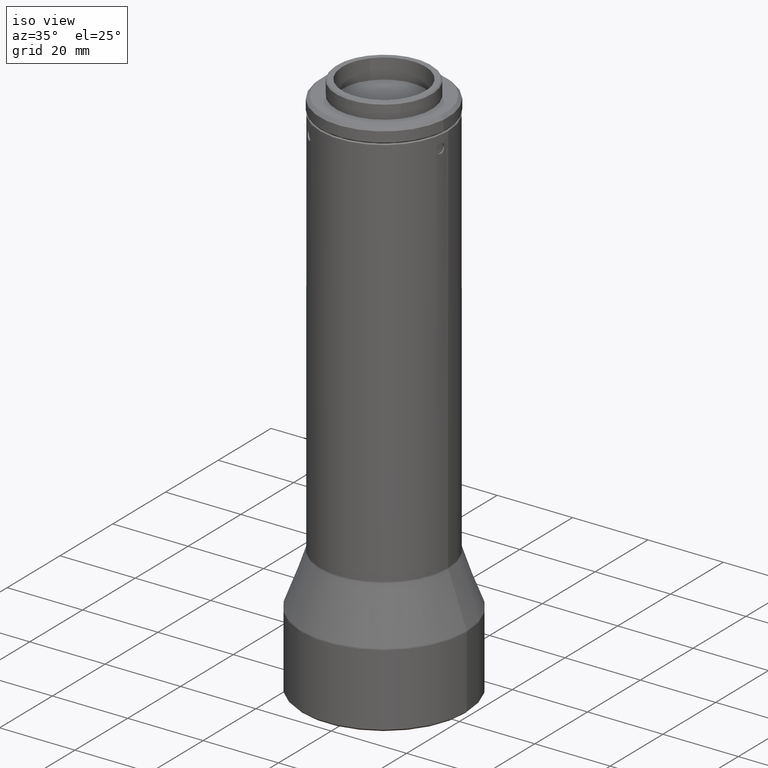
[diagram: clean part render]
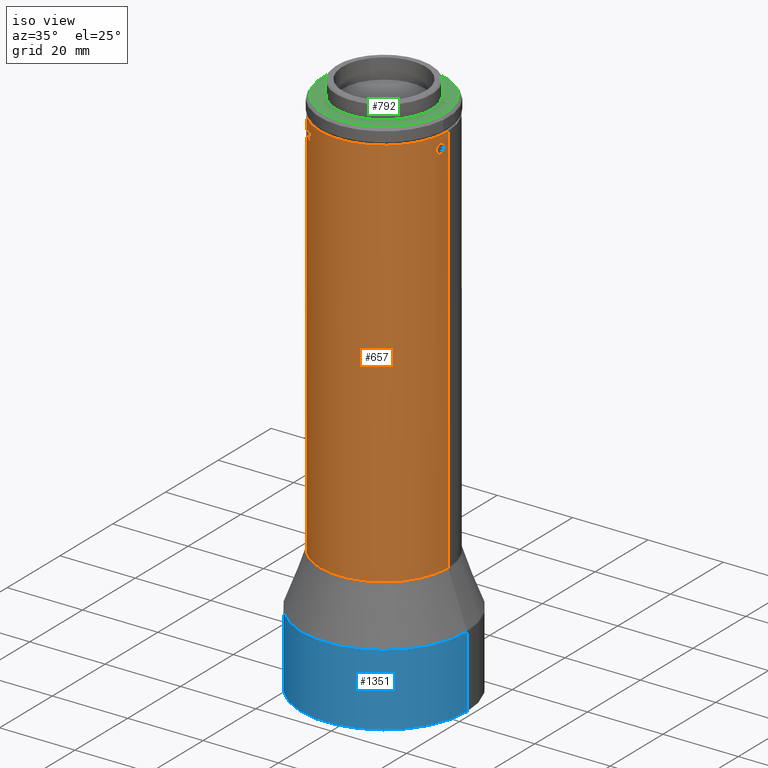
[diagram: same view with three faces highlighted in distinct colors, each labeled with its STEP entity id]
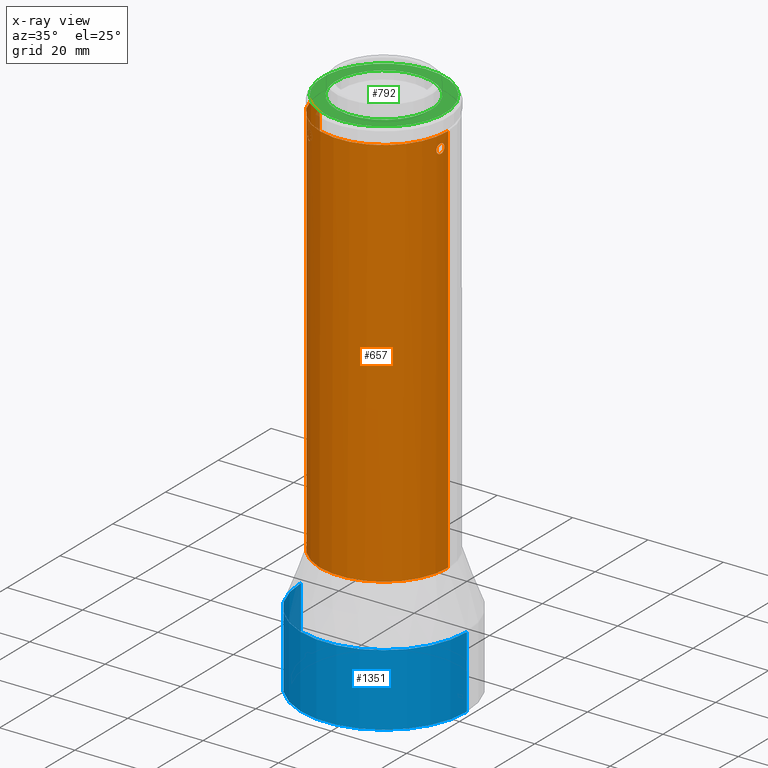
[diagram: x-ray of the same camera — body ghosted, the three highlighted faces saturated]
A machine part, iso view with three faces highlighted in distinct colors.
The next image is the same camera in x-ray (body ghosted, the three faces saturated) — at least one of them is partly hidden behind the body in this view.
Their STEP definitions:

[orange] entity #657 — the highlighted cylindrical surface (partial cylindrical patch) has radius 17 mm, axis along (-0, -0, 1).
#5 = CARTESIAN_POINT ( 'NONE',  ( 16.94905413051333200, -1.315128921790565300, 101.9213085027108700 ) ) ;
#14 = CARTESIAN_POINT ( 'NONE',  ( 16.89025995796418300, -1.934363905099334400, 100.8288744721812000 ) ) ;
#25 = EDGE_CURVE ( 'NONE', #645, #285, #1396, .T. ) ;
#31 = CARTESIAN_POINT ( 'NONE',  ( -11.38047858313887200, -12.62925301557978100, 101.1525873956887000 ) ) ;
#36 = CARTESIAN_POINT ( 'NONE',  ( -10.36336026785664200, -13.47617101914538800, 100.7113291923188600 ) ) ;
#64 = EDGE_CURVE ( 'NONE', #1439, #1475, #1095, .T. ) ;
#65 = ORIENTED_EDGE ( 'NONE', *, *, #289, .T. ) ;
#75 = B_SPLINE_CURVE_WITH_KNOTS ( 'NONE', 3,
 ( #279, #980, #568, #1282, #1039, #874, #14, #1701, #1444, #1683, #1431, #1424, #1168, #1308, #457, #1690, #1565, #325, #609, #884 ),
 .UNSPECIFIED., .F., .F.,
 ( 4, 2, 2, 2, 2, 2, 2, 2, 2, 4 ),
 ( 0.0000000000000000000, 0.0004886735322580783400, 0.0009773470645161566800, 0.001466020596774235000, 0.001954694129032313800, 0.002443367661290392300, 0.002932041193548470900, 0.003420714725806550300, 0.003665051491935589400, 0.003909388258064629300 ),
 .UNSPECIFIED. ) ;
#77 = FACE_BOUND ( 'NONE', #565, .T. ) ;
#80 = VECTOR ( 'NONE', #1202, 1000.000000000000000 ) ;
#105 = VERTEX_POINT ( 'NONE', #1515 ) ;
#107 = VERTEX_POINT ( 'NONE', #1807 ) ;
#110 = EDGE_CURVE ( 'NONE', #107, #1077, #75, .T. ) ;
#119 = CARTESIAN_POINT ( 'NONE',  ( 16.78148654663573000, -2.721935796130891200, 103.1711756310488300 ) ) ;
#135 = CARTESIAN_POINT ( 'NONE',  ( -17.00000000000000400, -3.515294156905914800E-015, 21.83130850271087900 ) ) ;
#136 = CARTESIAN_POINT ( 'NONE',  ( 16.88932506598335000, -1.937864698210162200, 103.0067020985440400 ) ) ;
#155 = CARTESIAN_POINT ( 'NONE',  ( -11.56580348792036800, -12.45922107030812300, 102.0863269330251100 ) ) ;
#162 = CARTESIAN_POINT ( 'NONE',  ( -11.37668829836310100, -12.63222171743451700, 102.6832927383247200 ) ) ;
#174 = CARTESIAN_POINT ( 'NONE',  ( -10.55504366525565600, -13.32657911771386200, 100.6712762916108900 ) ) ;
#187 = CARTESIAN_POINT ( 'NONE',  ( -9.613462120778924800, -14.02074698624684900, 102.0843903150159800 ) ) ;
#215 = CARTESIAN_POINT ( 'NONE',  ( -7.330792791710123900E-015, 1.489166409255931800E-015, 0.5076354834193160800 ) ) ;
#245 = EDGE_CURVE ( 'NONE', #105, #285, #1621, .T. ) ;
#272 = CARTESIAN_POINT ( 'NONE',  ( 16.93616685933046300, -1.473150578222909500, 102.5513020872525200 ) ) ;
#276 = AXIS2_PLACEMENT_3D ( 'NONE', #215, #355, #935 ) ;
#279 = CARTESIAN_POINT ( 'NONE',  ( 16.94905413051333200, -1.315128921790565300, 101.9213085027108700 ) ) ;
#285 = VERTEX_POINT ( 'NONE', #835 ) ;
#289 = EDGE_CURVE ( 'NONE', #1077, #107, #1600, .T. ) ;
#306 = CARTESIAN_POINT ( 'NONE',  ( -11.54196786360067900, -12.48146379484171600, 102.2485575802516300 ) ) ;
#310 = CARTESIAN_POINT ( 'NONE',  ( -11.56580348792036800, -12.45922107030812100, 101.9213085027108600 ) ) ;
#312 = ORIENTED_EDGE ( 'NONE', *, *, #419, .T. ) ;
#314 = CARTESIAN_POINT ( 'NONE',  ( -11.33737396534573200, -12.66756822603368200, 102.7476085491923800 ) ) ;
#322 = CARTESIAN_POINT ( 'NONE',  ( 17.00000000000002100, -5.597193715456385900E-015, 105.2213085027108500 ) ) ;
#325 = CARTESIAN_POINT ( 'NONE',  ( 16.57473564104622500, -3.778676392364550600, 101.7568385735546200 ) ) ;
#332 = CARTESIAN_POINT ( 'NONE',  ( -9.818928867224775200, -13.87812310333215600, 101.1539575460427900 ) ) ;
#339 = CARTESIAN_POINT ( 'NONE',  ( -10.48862926019264400, -13.37968384325892400, 103.1711815272660400 ) ) ;
#355 = DIRECTION ( 'NONE',  ( 7.861355739480307100E-016, -5.318304654131179000E-016, 1.000000000000000000 ) ) ;
#382 = ORIENTED_EDGE ( 'NONE', *, *, #245, .T. ) ;
#419 = EDGE_CURVE ( 'NONE', #1475, #1439, #1372, .T. ) ;
#425 = CARTESIAN_POINT ( 'NONE',  ( 16.94655896077884400, -1.348354516456431500, 102.2506348374589900 ) ) ;
#456 = CARTESIAN_POINT ( 'NONE',  ( -9.613462120778921300, -14.02074698624684100, 101.9213085027108600 ) ) ;
#457 = CARTESIAN_POINT ( 'NONE',  ( 16.60755234644779000, -3.632238825455038200, 101.2914993854814300 ) ) ;
#461 = CARTESIAN_POINT ( 'NONE',  ( -11.20792197621900500, -12.78263735464061100, 102.9205506822081200 ) ) ;
#477 = CARTESIAN_POINT ( 'NONE',  ( -10.11886271781574100, -13.66131483895976100, 103.0128289217879900 ) ) ;
#490 = EDGE_CURVE ( 'NONE', #1089, #1687, #1334, .T. ) ;
#492 = ORIENTED_EDGE ( 'NONE', *, *, #1476, .T. ) ;
#499 = DIRECTION ( 'NONE',  ( 3.330669073875489300E-016, 4.163336342344364100E-017, -1.000000000000000000 ) ) ;
#558 = CARTESIAN_POINT ( 'NONE',  ( 16.62737123516994900, -3.541725786202562600, 102.6892645862191700 ) ) ;
#565 = EDGE_LOOP ( 'NONE', ( #312, #992 ) ) ;
#568 = CARTESIAN_POINT ( 'NONE',  ( 16.94661323031724400, -1.347686062889913200, 101.5939260053131900 ) ) ;
#579 = ORIENTED_EDGE ( 'NONE', *, *, #110, .T. ) ;
#593 = CARTESIAN_POINT ( 'NONE',  ( 1.932830351480316200E-014, -5.089735884583224300E-014, 105.2213085027108500 ) ) ;
#609 = CARTESIAN_POINT ( 'NONE',  ( 16.57290370221338800, -3.786669100563599100, 101.8397133775706600 ) ) ;
#612 = CARTESIAN_POINT ( 'NONE',  ( -11.10284782064750100, -12.87436994652603900, 103.0136296684156900 ) ) ;
#619 = CARTESIAN_POINT ( 'NONE',  ( -10.74662669445600800, -13.17335561629377900, 103.1714347437540300 ) ) ;
#622 = CARTESIAN_POINT ( 'NONE',  ( -11.54191626976678400, -12.48151114044446600, 101.5938929586061200 ) ) ;
#634 = ORIENTED_EDGE ( 'NONE', *, *, #1239, .T. ) ;
#645 = VERTEX_POINT ( 'NONE', #1112 ) ;
#657 = ADVANCED_FACE ( 'NONE', ( #1131, #1458, #77 ), #1550, .T. ) ;
#669 = ORIENTED_EDGE ( 'NONE', *, *, #25, .F. ) ;
#691 = CARTESIAN_POINT ( 'NONE',  ( 16.70067485627505400, -3.179675404758538700, 103.0128807274217300 ) ) ;
#698 = CARTESIAN_POINT ( 'NONE',  ( 16.88101599737466100, -2.009239450649241000, 103.0450520773665900 ) ) ;
#724 = CARTESIAN_POINT ( 'NONE',  ( -10.12001132981679200, -13.66046607295546300, 100.8289482953363900 ) ) ;
#734 = CARTESIAN_POINT ( 'NONE',  ( -10.00885188491131000, -13.74178114062253000, 100.9205654906212900 ) ) ;
#750 = CARTESIAN_POINT ( 'NONE',  ( -9.743130115621673000, -13.93109144322356100, 102.5497380924409200 ) ) ;
#765 = CARTESIAN_POINT ( 'NONE',  ( -9.640605093743696200, -14.00223648835691700, 102.2489109379591700 ) ) ;
#798 = AXIS2_PLACEMENT_3D ( 'NONE', #968, #1377, #1100 ) ;
#835 = CARTESIAN_POINT ( 'NONE',  ( -16.99999999999997900, -3.515294156905951500E-015, 105.2213085027108500 ) ) ;
#843 = CARTESIAN_POINT ( 'NONE',  ( 16.83115783817080300, -2.395694266753605200, 103.1714405686863400 ) ) ;
#854 = CARTESIAN_POINT ( 'NONE',  ( 16.92809607152892300, -1.566178421309452100, 102.6905818722793400 ) ) ;
#857 = DIRECTION ( 'NONE',  ( -9.314793397420502900E-020, -0.0000000000000000000, 1.000000000000000000 ) ) ;
#872 = CARTESIAN_POINT ( 'NONE',  ( -11.56580348792036800, -12.45922107030812100, 101.9213085027108600 ) ) ;
#874 = CARTESIAN_POINT ( 'NONE',  ( 16.90529876697739900, -1.795607507566172400, 100.9219921928989300 ) ) ;
#884 = CARTESIAN_POINT ( 'NONE',  ( 16.57290370221149800, -3.786669100571844900, 101.9213085027103600 ) ) ;
#895 = CARTESIAN_POINT ( 'NONE',  ( -9.613462120778923000, -14.02074698624684100, 101.7581814181764500 ) ) ;
#935 = DIRECTION ( 'NONE',  ( 1.000000000000000000, 1.665334536937734800E-016, -7.844521600924530800E-016 ) ) ;
#936 = ORIENTED_EDGE ( 'NONE', *, *, #490, .T. ) ;
#968 = CARTESIAN_POINT ( 'NONE',  ( 3.033153964630221900E-015, -5.597193715456416600E-015, 21.83130850271087900 ) ) ;
#975 = CARTESIAN_POINT ( 'NONE',  ( 16.75460587751560800, -2.882023286471464100, 103.1384823655853000 ) ) ;
#980 = CARTESIAN_POINT ( 'NONE',  ( 16.94905413051333900, -1.315128921790566000, 101.7560676773484100 ) ) ;
#992 = ORIENTED_EDGE ( 'NONE', *, *, #64, .T. ) ;
#1017 = CARTESIAN_POINT ( 'NONE',  ( -10.87310501901400000, -13.06897997279104500, 100.7042155034463500 ) ) ;
#1023 = CARTESIAN_POINT ( 'NONE',  ( -11.44401269543521600, -12.57126229076673400, 102.5475191983547800 ) ) ;
#1029 = CARTESIAN_POINT ( 'NONE',  ( -11.44929573693867700, -12.56652611724754100, 101.2913280732117600 ) ) ;
#1037 = CARTESIAN_POINT ( 'NONE',  ( -11.10278066002901200, -12.87442860475782600, 100.8289271489612400 ) ) ;
#1039 = CARTESIAN_POINT ( 'NONE',  ( 16.92813014806384700, -1.565804078487365700, 101.1525289617636100 ) ) ;
#1047 = CARTESIAN_POINT ( 'NONE',  ( 17.00000000000001100, -5.597193715456416600E-015, 21.83130850271087900 ) ) ;
#1049 = AXIS2_PLACEMENT_3D ( 'NONE', #593, #1286, #1688 ) ;
#1058 = CARTESIAN_POINT ( 'NONE',  ( -11.56580348792036800, -12.45922107030812100, 101.9213085027108600 ) ) ;
#1077 = VERTEX_POINT ( 'NONE', #1614 ) ;
#1086 = EDGE_LOOP ( 'NONE', ( #579, #65 ) ) ;
#1089 = VERTEX_POINT ( 'NONE', #1781 ) ;
#1095 = B_SPLINE_CURVE_WITH_KNOTS ( 'NONE', 3,
 ( #872, #155, #306, #1292, #1023, #162, #314, #461, #612, #1191, #619, #339, #1724, #477, #1584, #1571, #750, #765, #187, #1323 ),
 .UNSPECIFIED., .F., .F.,
 ( 4, 2, 2, 2, 2, 2, 2, 2, 2, 4 ),
 ( 0.005864622785134531100, 0.006353172221397215500, 0.006597446939528538200, 0.006841721657659860900, 0.007330271093922472400, 0.007818820530185084000, 0.008307369966447694700, 0.008795919402710307100, 0.009284468838972919500, 0.009773018275235530200 ),
 .UNSPECIFIED. ) ;
#1100 = DIRECTION ( 'NONE',  ( 1.000000000000000000, 0.0000000000000000000, 0.0000000000000000000 ) ) ;
#1104 = CARTESIAN_POINT ( 'NONE',  ( 16.58030284701540300, -3.754657440878822200, 102.2489291012809800 ) ) ;
#1112 = CARTESIAN_POINT ( 'NONE',  ( -17.00000000000000700, 8.296167848891474400E-016, 0.5076354834193294000 ) ) ;
#1115 = CARTESIAN_POINT ( 'NONE',  ( 16.91095587464022600, -1.738651566457168000, 102.8634276185747600 ) ) ;
#1124 = CARTESIAN_POINT ( 'NONE',  ( 16.90428225269155900, -1.802737444654640700, 102.9161592580182700 ) ) ;
#1131 = FACE_OUTER_BOUND ( 'NONE', #1656, .T. ) ;
#1146 = CARTESIAN_POINT ( 'NONE',  ( -9.743612152882100500, -13.93075631017658700, 101.2915894444774800 ) ) ;
#1151 = CARTESIAN_POINT ( 'NONE',  ( -11.20792912154799700, -12.78263076675415800, 100.9220827944142100 ) ) ;
#1165 = CARTESIAN_POINT ( 'NONE',  ( -11.56580348792037000, -12.45922107030812300, 101.7562442625535700 ) ) ;
#1168 = CARTESIAN_POINT ( 'NONE',  ( 16.67435754194541500, -3.313527341103724500, 100.9205670907258400 ) ) ;
#1191 = CARTESIAN_POINT ( 'NONE',  ( -10.87327045290595600, -13.06884160537697100, 103.1383353694376100 ) ) ;
#1195 = CARTESIAN_POINT ( 'NONE',  ( -9.613462120778921300, -14.02074698624684100, 101.9213085027108600 ) ) ;
#1202 = DIRECTION ( 'NONE',  ( -9.314793397420502900E-020, -0.0000000000000000000, 1.000000000000000000 ) ) ;
#1239 = EDGE_CURVE ( 'NONE', #1687, #105, #1652, .T. ) ;
#1245 = CARTESIAN_POINT ( 'NONE',  ( 16.60742354063022600, -3.632819612809688300, 102.5497958156939700 ) ) ;
#1253 = CARTESIAN_POINT ( 'NONE',  ( 16.57290370221149800, -3.786669100571844900, 101.9213085027103600 ) ) ;
#1282 = CARTESIAN_POINT ( 'NONE',  ( 16.93617471828053000, -1.473072847467602700, 101.2911708154433200 ) ) ;
#1286 = DIRECTION ( 'NONE',  ( 3.330669073875489300E-016, 4.163336342344364100E-017, -1.000000000000000000 ) ) ;
#1292 = CARTESIAN_POINT ( 'NONE',  ( -11.47242252401504600, -12.54529838573226800, 102.4757392716410300 ) ) ;
#1306 = CARTESIAN_POINT ( 'NONE',  ( -10.30144041780970500, -13.52353748025324800, 100.7349370972842700 ) ) ;
#1308 = CARTESIAN_POINT ( 'NONE',  ( 16.62721697440421300, -3.542501737890701100, 101.1539360041468000 ) ) ;
#1323 = CARTESIAN_POINT ( 'NONE',  ( -9.613462120778921300, -14.02074698624684100, 101.9213085027108600 ) ) ;
#1326 = CARTESIAN_POINT ( 'NONE',  ( 1.932830351480316200E-014, -5.089735884583224300E-014, 105.2213085027108500 ) ) ;
#1334 = LINE ( 'NONE', #1047, #80 ) ;
#1341 = CIRCLE ( 'NONE', #276, 17.00000000000000400 ) ;
#1372 = B_SPLINE_CURVE_WITH_KNOTS ( 'NONE', 3,
 ( #456, #895, #1429, #1146, #332, #734, #724, #1306, #36, #1447, #174, #1707, #1017, #1037, #1151, #31, #1029, #622, #1165, #310 ),
 .UNSPECIFIED., .F., .F.,
 ( 4, 2, 2, 2, 2, 2, 2, 2, 2, 4 ),
 ( 0.001955142307231516700, 0.002443827366969405400, 0.002932512426707294000, 0.003421197486445182700, 0.003665540016314119400, 0.003909882546183055300, 0.004398567605920924500, 0.004887252665658793600, 0.005375937725396661900, 0.005864622785134530200 ),
 .UNSPECIFIED. ) ;
#1377 = DIRECTION ( 'NONE',  ( -9.314793397420502900E-020, -0.0000000000000000000, 1.000000000000000000 ) ) ;
#1382 = CARTESIAN_POINT ( 'NONE',  ( 16.67388462141813600, -3.315850926752429200, 102.9198875787279200 ) ) ;
#1396 = LINE ( 'NONE', #135, #1414 ) ;
#1400 = CARTESIAN_POINT ( 'NONE',  ( 16.94905413051333600, -1.315128921790566200, 102.0865112415162200 ) ) ;
#1414 = VECTOR ( 'NONE', #857, 1000.000000000000000 ) ;
#1424 = CARTESIAN_POINT ( 'NONE',  ( 16.70093584220851900, -3.178313286366886800, 100.8289199696831300 ) ) ;
#1429 = CARTESIAN_POINT ( 'NONE',  ( -9.640354180678352600, -14.00241123629762000, 101.5943176547209400 ) ) ;
#1431 = CARTESIAN_POINT ( 'NONE',  ( 16.75490641615212400, -2.880285461173210900, 100.7036453767428100 ) ) ;
#1439 = VERTEX_POINT ( 'NONE', #1058 ) ;
#1444 = CARTESIAN_POINT ( 'NONE',  ( 16.83107953795263600, -2.396115558324650100, 100.6713671258103800 ) ) ;
#1447 = CARTESIAN_POINT ( 'NONE',  ( -10.48994313602555000, -13.37787406061196000, 100.6794206127937800 ) ) ;
#1458 = FACE_BOUND ( 'NONE', #1086, .T. ) ;
#1460 = DIRECTION ( 'NONE',  ( -0.7809365468565790900, 0.6246103663754885000, 0.0000000000000000000 ) ) ;
#1475 = VERTEX_POINT ( 'NONE', #1195 ) ;
#1476 = EDGE_CURVE ( 'NONE', #645, #1089, #1341, .T. ) ;
#1515 = CARTESIAN_POINT ( 'NONE',  ( 13.27592129656187200, -10.61837622838335400, 105.2213085027108500 ) ) ;
#1550 = CYLINDRICAL_SURFACE ( 'NONE', #798, 17.00000000000000700 ) ;
#1565 = CARTESIAN_POINT ( 'NONE',  ( 16.58183075742444500, -3.747418522251522600, 101.5966096197870500 ) ) ;
#1571 = CARTESIAN_POINT ( 'NONE',  ( -9.819532979863050000, -13.87768253216365700, 102.6891912215956100 ) ) ;
#1584 = CARTESIAN_POINT ( 'NONE',  ( -10.00691191929487200, -13.74318064516407900, 102.9198766578771500 ) ) ;
#1600 = B_SPLINE_CURVE_WITH_KNOTS ( 'NONE', 3,
 ( #1253, #1787, #1104, #1245, #558, #1382, #691, #975, #119, #843, #1806, #698, #136, #1124, #1115, #854, #272, #425, #1400, #5 ),
 .UNSPECIFIED., .F., .F.,
 ( 4, 2, 2, 2, 2, 2, 2, 2, 2, 4 ),
 ( 0.003909388258064629300, 0.004397949155370907900, 0.004886510052677187400, 0.005375070949983466000, 0.005863631847289744700, 0.006352192744596023300, 0.006596473193249154800, 0.006840753641902284600, 0.007329314539208546700, 0.007817875436514808800 ),
 .UNSPECIFIED. ) ;
#1614 = CARTESIAN_POINT ( 'NONE',  ( 16.57290370221149800, -3.786669100571844900, 101.9213085027103600 ) ) ;
#1621 = CIRCLE ( 'NONE', #1757, 17.00000000000000700 ) ;
#1652 = CIRCLE ( 'NONE', #1049, 17.00000000000000700 ) ;
#1656 = EDGE_LOOP ( 'NONE', ( #669, #492, #936, #634, #382 ) ) ;
#1683 = CARTESIAN_POINT ( 'NONE',  ( 16.78200187921766000, -2.718643247590275500, 100.6712500406161600 ) ) ;
#1687 = VERTEX_POINT ( 'NONE', #322 ) ;
#1688 = DIRECTION ( 'NONE',  ( -0.7809365468565790900, 0.6246103663754885000, 0.0000000000000000000 ) ) ;
#1690 = CARTESIAN_POINT ( 'NONE',  ( 16.58705947437908500, -3.724304827709291800, 101.5186790370797800 ) ) ;
#1701 = CARTESIAN_POINT ( 'NONE',  ( 16.85337013432985700, -2.233060742621605600, 100.7042014713458400 ) ) ;
#1707 = CARTESIAN_POINT ( 'NONE',  ( -10.74620094011912400, -13.17367816439824900, 100.6713732188942500 ) ) ;
#1724 = CARTESIAN_POINT ( 'NONE',  ( -10.36048604777744400, -13.47899234679628400, 103.1385176254535700 ) ) ;
#1757 = AXIS2_PLACEMENT_3D ( 'NONE', #1326, #499, #1460 ) ;
#1781 = CARTESIAN_POINT ( 'NONE',  ( 16.99999999999999600, 4.320235122050080900E-015, 0.5076354834193027600 ) ) ;
#1787 = CARTESIAN_POINT ( 'NONE',  ( 16.57290370221334200, -3.786669100563794500, 102.0844611390707400 ) ) ;
#1806 = CARTESIAN_POINT ( 'NONE',  ( 16.85313661452494900, -2.234896719495931300, 103.1390664790824700 ) ) ;
#1807 = CARTESIAN_POINT ( 'NONE',  ( 16.94905413051333200, -1.315128921790565300, 101.9213085027108700 ) ) ;

[blue] entity #1351 — the highlighted cylindrical surface (partial cylindrical patch) has radius 22 mm, axis along (0, -0, 1).
#58 = VERTEX_POINT ( 'NONE', #1696 ) ;
#243 = CARTESIAN_POINT ( 'NONE',  ( 22.00000000000000400, 1.942890293094025700E-016, 9.831308502710831100 ) ) ;
#343 = EDGE_LOOP ( 'NONE', ( #1279, #1776, #1489, #703 ) ) ;
#404 = CYLINDRICAL_SURFACE ( 'NONE', #819, 22.00000000000000400 ) ;
#479 = CARTESIAN_POINT ( 'NONE',  ( -1.121751385605398400E-018, -3.469446951953614200E-015, 9.831308502710848900 ) ) ;
#498 = VECTOR ( 'NONE', #535, 1000.000000000000000 ) ;
#535 = DIRECTION ( 'NONE',  ( 7.861355739480307100E-016, -5.318304654131179000E-016, 1.000000000000000000 ) ) ;
#584 = EDGE_CURVE ( 'NONE', #58, #754, #1805, .T. ) ;
#635 = CARTESIAN_POINT ( 'NONE',  ( 21.99999999999998600, 1.534063844257632100E-014, -13.58240557527099000 ) ) ;
#683 = FACE_OUTER_BOUND ( 'NONE', #343, .T. ) ;
#703 = ORIENTED_EDGE ( 'NONE', *, *, #1605, .T. ) ;
#729 = DIRECTION ( 'NONE',  ( 7.861355739480307100E-016, -5.318304654131179000E-016, 1.000000000000000000 ) ) ;
#733 = CARTESIAN_POINT ( 'NONE',  ( -22.00000000000000400, -4.438959975092452800E-015, 9.831308502710866600 ) ) ;
#740 = VECTOR ( 'NONE', #1734, 1000.000000000000000 ) ;
#754 = VERTEX_POINT ( 'NONE', #1263 ) ;
#819 = AXIS2_PLACEMENT_3D ( 'NONE', #479, #729, #899 ) ;
#894 = CARTESIAN_POINT ( 'NONE',  ( -22.00000000000002100, 5.318943521926112500E-015, -13.58240557527095400 ) ) ;
#899 = DIRECTION ( 'NONE',  ( 1.000000000000000000, 1.665334536937734600E-016, -7.885106708985485100E-016 ) ) ;
#918 = AXIS2_PLACEMENT_3D ( 'NONE', #1713, #1157, #1324 ) ;
#1057 = EDGE_CURVE ( 'NONE', #754, #1622, #1143, .T. ) ;
#1143 = LINE ( 'NONE', #243, #498 ) ;
#1157 = DIRECTION ( 'NONE',  ( -7.861355739480307100E-016, 5.318304654131179000E-016, -1.000000000000000000 ) ) ;
#1254 = DIRECTION ( 'NONE',  ( 1.000000000000000000, 1.665334536937734600E-016, -6.308085367188388300E-016 ) ) ;
#1263 = CARTESIAN_POINT ( 'NONE',  ( 21.99999999999996800, 2.279708380936691200E-014, -32.66869149728916000 ) ) ;
#1279 = ORIENTED_EDGE ( 'NONE', *, *, #1408, .F. ) ;
#1324 = DIRECTION ( 'NONE',  ( -1.000000000000000000, -1.665334536937734600E-016, 7.885106708985485100E-016 ) ) ;
#1351 = ADVANCED_FACE ( 'NONE', ( #683 ), #404, .T. ) ;
#1384 = LINE ( 'NONE', #733, #740 ) ;
#1406 = VERTEX_POINT ( 'NONE', #894 ) ;
#1408 = EDGE_CURVE ( 'NONE', #58, #1406, #1384, .T. ) ;
#1442 = CIRCLE ( 'NONE', #918, 22.00000000000000400 ) ;
#1489 = ORIENTED_EDGE ( 'NONE', *, *, #1057, .T. ) ;
#1505 = DIRECTION ( 'NONE',  ( 7.861355739480307100E-016, -5.318304654131179000E-016, 1.000000000000000000 ) ) ;
#1557 = AXIS2_PLACEMENT_3D ( 'NONE', #1641, #1505, #1254 ) ;
#1605 = EDGE_CURVE ( 'NONE', #1622, #1406, #1442, .T. ) ;
#1622 = VERTEX_POINT ( 'NONE', #635 ) ;
#1641 = CARTESIAN_POINT ( 'NONE',  ( -3.341188364417691300E-014, 1.913334782810389500E-014, -32.66869149728914600 ) ) ;
#1696 = CARTESIAN_POINT ( 'NONE',  ( -22.00000000000002800, 1.308850064250766000E-014, -32.66869149728913200 ) ) ;
#1713 = CARTESIAN_POINT ( 'NONE',  ( -1.840747530633492900E-014, 8.982679503189128300E-015, -13.58240557527097200 ) ) ;
#1734 = DIRECTION ( 'NONE',  ( 7.861355739480307100E-016, -5.318304654131179000E-016, 1.000000000000000000 ) ) ;
#1776 = ORIENTED_EDGE ( 'NONE', *, *, #584, .T. ) ;
#1805 = CIRCLE ( 'NONE', #1557, 22.00000000000000400 ) ;

[green] entity #792 — the highlighted planar face has unit normal (0, 0, -1).
#2 = CARTESIAN_POINT ( 'NONE',  ( 1.796272919451421500E-014, -5.106805563586835700E-014, 109.3213085027108600 ) ) ;
#41 = EDGE_CURVE ( 'NONE', #1218, #1541, #138, .T. ) ;
#74 = DIRECTION ( 'NONE',  ( -1.000000000000000000, 8.881784197001249400E-016, 0.0000000000000000000 ) ) ;
#114 = CARTESIAN_POINT ( 'NONE',  ( 1.799733692785996900E-014, -5.199092852508801800E-014, 109.3213085027108600 ) ) ;
#124 = EDGE_LOOP ( 'NONE', ( #544, #1387 ) ) ;
#131 = ORIENTED_EDGE ( 'NONE', *, *, #41, .F. ) ;
#138 = CIRCLE ( 'NONE', #435, 12.69999999999999900 ) ;
#281 = DIRECTION ( 'NONE',  ( -0.9955320382583123800, 0.09442436550620873800, 0.0000000000000000000 ) ) ;
#288 = FACE_BOUND ( 'NONE', #329, .T. ) ;
#329 = EDGE_LOOP ( 'NONE', ( #431, #131 ) ) ;
#340 = VERTEX_POINT ( 'NONE', #1531 ) ;
#366 = AXIS2_PLACEMENT_3D ( 'NONE', #450, #1524, #281 ) ;
#431 = ORIENTED_EDGE ( 'NONE', *, *, #1632, .F. ) ;
#435 = AXIS2_PLACEMENT_3D ( 'NONE', #2, #1413, #1002 ) ;
#450 = CARTESIAN_POINT ( 'NONE',  ( 1.799733692785996900E-014, -5.199092852508801800E-014, 109.3213085027108600 ) ) ;
#517 = CARTESIAN_POINT ( 'NONE',  ( 1.796272919451421500E-014, -5.106805563586835700E-014, 109.3213085027108600 ) ) ;
#544 = ORIENTED_EDGE ( 'NONE', *, *, #1117, .T. ) ;
#710 = DIRECTION ( 'NONE',  ( -0.9955320382583123800, 0.09442436550620873800, -3.185051075240755600E-016 ) ) ;
#751 = EDGE_CURVE ( 'NONE', #947, #340, #1599, .T. ) ;
#788 = AXIS2_PLACEMENT_3D ( 'NONE', #517, #915, #74 ) ;
#792 = ADVANCED_FACE ( 'NONE', ( #288, #1435 ), #1809, .F. ) ;
#912 = CARTESIAN_POINT ( 'NONE',  ( 16.12761901978468500, -1.529674721200631600, 109.3213085027108600 ) ) ;
#915 = DIRECTION ( 'NONE',  ( -3.304648221735822400E-016, -1.110223024625158500E-016, 1.000000000000000000 ) ) ;
#933 = CIRCLE ( 'NONE', #1617, 16.20000000000001400 ) ;
#947 = VERTEX_POINT ( 'NONE', #912 ) ;
#1002 = DIRECTION ( 'NONE',  ( -1.000000000000000000, -1.776356839400250500E-015, 0.0000000000000000000 ) ) ;
#1073 = CARTESIAN_POINT ( 'NONE',  ( 9.917894145078573600, -7.932551652968753000, 109.3213085027108600 ) ) ;
#1117 = EDGE_CURVE ( 'NONE', #340, #947, #933, .T. ) ;
#1218 = VERTEX_POINT ( 'NONE', #1265 ) ;
#1247 = DIRECTION ( 'NONE',  ( -3.304648221735822400E-016, -1.110223024625158500E-016, 1.000000000000000000 ) ) ;
#1265 = CARTESIAN_POINT ( 'NONE',  ( -9.917894145078538100, 7.932551652968652600, 109.3213085027108600 ) ) ;
#1268 = AXIS2_PLACEMENT_3D ( 'NONE', #1269, #1410, #710 ) ;
#1269 = CARTESIAN_POINT ( 'NONE',  ( 1.170862132277006300, 12.34459727440302100, 109.3213085027108600 ) ) ;
#1387 = ORIENTED_EDGE ( 'NONE', *, *, #751, .T. ) ;
#1410 = DIRECTION ( 'NONE',  ( 3.304648221735822000E-016, 1.110223024625158500E-016, -1.000000000000000000 ) ) ;
#1413 = DIRECTION ( 'NONE',  ( -3.304648221735822400E-016, -1.110223024625158500E-016, 1.000000000000000000 ) ) ;
#1435 = FACE_OUTER_BOUND ( 'NONE', #124, .T. ) ;
#1437 = CIRCLE ( 'NONE', #788, 12.69999999999999900 ) ;
#1524 = DIRECTION ( 'NONE',  ( -3.304648221735822400E-016, -1.110223024625158500E-016, 1.000000000000000000 ) ) ;
#1531 = CARTESIAN_POINT ( 'NONE',  ( -16.12761901978466000, 1.529674721200530800, 109.3213085027108600 ) ) ;
#1541 = VERTEX_POINT ( 'NONE', #1073 ) ;
#1599 = CIRCLE ( 'NONE', #366, 16.20000000000001400 ) ;
#1617 = AXIS2_PLACEMENT_3D ( 'NONE', #114, #1247, #1786 ) ;
#1632 = EDGE_CURVE ( 'NONE', #1541, #1218, #1437, .T. ) ;
#1786 = DIRECTION ( 'NONE',  ( -0.9955320382583123800, 0.09442436550620873800, 0.0000000000000000000 ) ) ;
#1809 = PLANE ( 'NONE',  #1268 ) ;